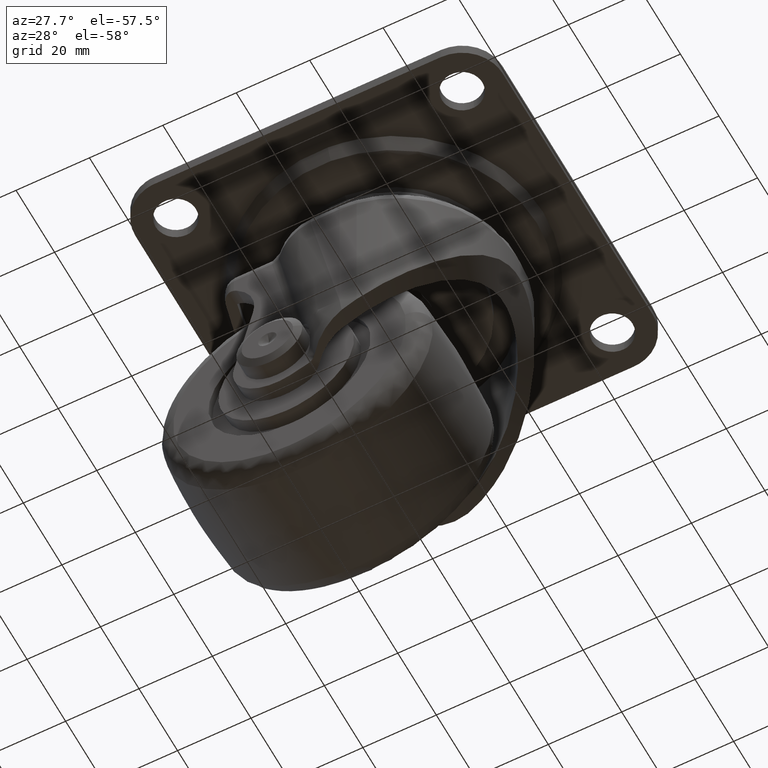
[diagram: clean part render]
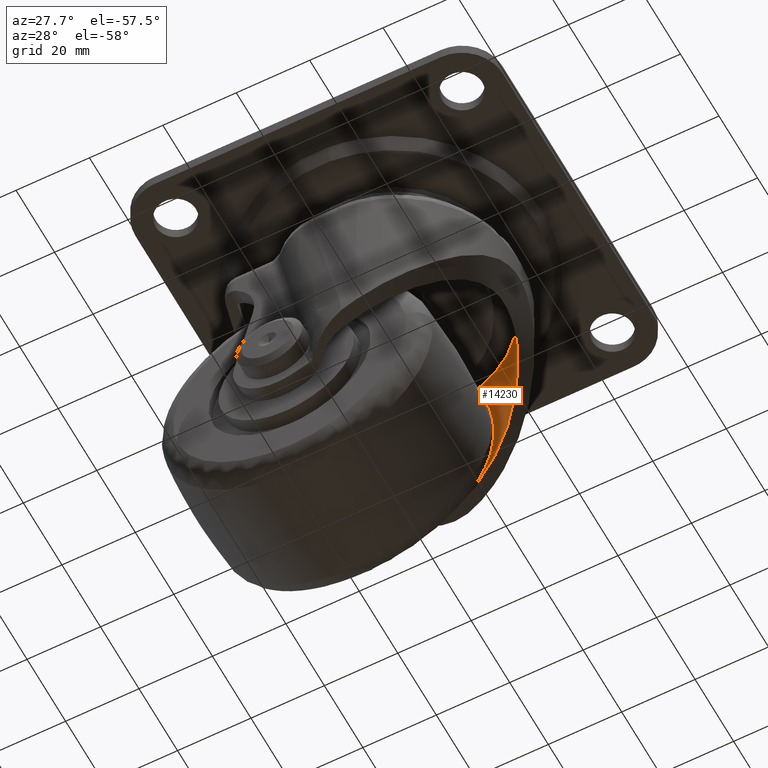
[diagram: same view with one face highlighted and labeled with its STEP entity id]
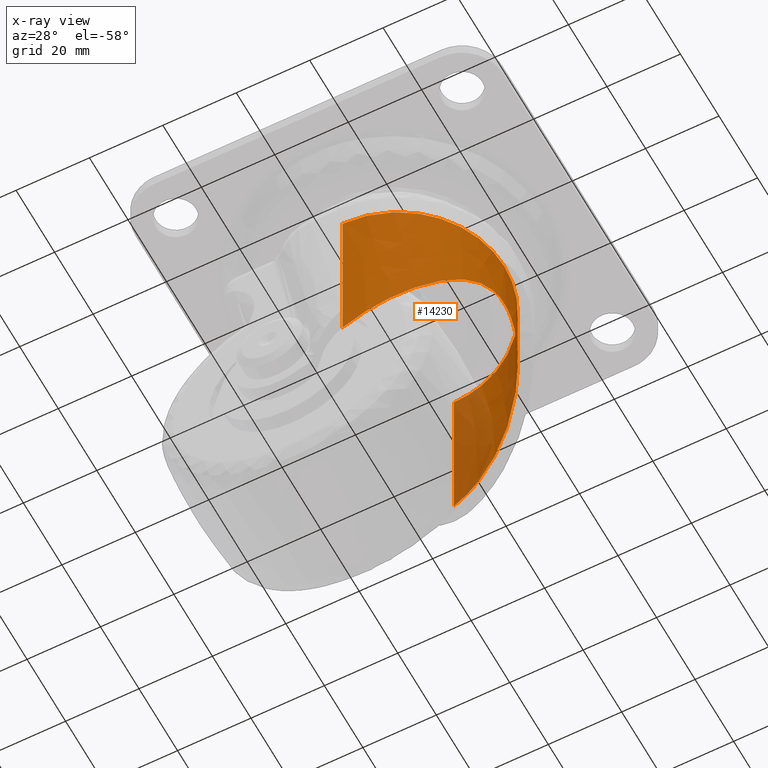
[diagram: x-ray of the same camera — body ghosted, the highlighted face saturated]
A machine part, auxiliary view. The second image highlights one B-rep face of the part: STEP entity #14230.
The next image is the same camera in x-ray: the body ghosted, the highlighted face saturated — about 19% of this face is hidden behind the body in this view.
In plain terms, the highlighted face is a freeform B-spline surface patch.
Its self-contained STEP definition (entity closure, byte-faithful):
#12983=CARTESIAN_POINT('',(-1.228536393799720,-28.873505000000101,-71.842425197581093));
#12984=VERTEX_POINT('',#12983);
#13012=CARTESIAN_POINT('',(-1.228536196900664,28.873505000000101,-71.842425130092494));
#13013=VERTEX_POINT('',#13012);
#13014=CARTESIAN_POINT('',(-1.228536393799720,-28.873505000000101,-71.842425197581093));
#13015=CARTESIAN_POINT('',(-0.131497210795412,-28.873505000000112,-71.466406434164085));
#13016=CARTESIAN_POINT('',(0.945706071810089,-28.821227118329901,-71.068789204203085));
#13017=CARTESIAN_POINT('',(3.063652154858954,-28.624332732421699,-70.232275505661960));
#13018=CARTESIAN_POINT('',(4.104384174162309,-28.479669942692109,-69.793374815646303));
#13019=CARTESIAN_POINT('',(6.151628072642251,-28.106103106054910,-68.875811165396016));
#13020=CARTESIAN_POINT('',(7.158133859560691,-27.877175159116000,-68.397144871044375));
#13021=CARTESIAN_POINT('',(9.138473611056593,-27.340222718838969,-67.401288299589368));
#13022=CARTESIAN_POINT('',(10.112304339378300,-27.032188775442481,-66.884094886019241));
#13023=CARTESIAN_POINT('',(11.309791805848249,-26.599378274342520,-66.214184417273813));
#13024=CARTESIAN_POINT('',(11.548297992220821,-26.510421948520680,-66.079031069233409));
#13025=CARTESIAN_POINT('',(12.023338385533689,-26.327739555596590,-65.806397363232932));
#13026=CARTESIAN_POINT('',(12.259742774764581,-26.234056258397100,-65.668987047015435));
#13027=CARTESIAN_POINT('',(12.962893119805820,-25.947198945571142,-65.255161666462769));
#13028=CARTESIAN_POINT('',(13.424618190263940,-25.747828776966060,-64.976559372927653));
#13029=CARTESIAN_POINT('',(14.789571497944920,-25.126211550727220,-64.133080500488575));
#13030=CARTESIAN_POINT('',(15.672621591980111,-24.680534632516281,-63.560525745101401));
#13031=CARTESIAN_POINT('',(17.388518496472489,-23.729420288579249,-62.397599013269037));
#13032=CARTESIAN_POINT('',(18.221358478865039,-23.223982487612460,-61.807217816547102));
#13033=CARTESIAN_POINT('',(19.839125071025862,-22.153641098382838,-60.611582324495252));
#13034=CARTESIAN_POINT('',(20.624051608673490,-21.588752807914339,-60.006314516318618));
#13035=CARTESIAN_POINT('',(22.147067511270240,-20.397144877225958,-58.784484851954517));
#13036=CARTESIAN_POINT('',(22.885165064569840,-19.770464014604791,-58.167900450075571));
#13037=CARTESIAN_POINT('',(23.778357502904051,-18.944845311351600,-57.393069026892952));
#13038=CARTESIAN_POINT('',(23.955505468597419,-18.777603817322451,-57.237911594619547));
#13039=CARTESIAN_POINT('',(24.305608137073168,-18.439950679341049,-56.928382284855957));
#13040=CARTESIAN_POINT('',(24.478720076205541,-18.269395629752459,-56.773874781007500));
#13041=CARTESIAN_POINT('',(24.992254580703630,-17.752428987006670,-56.311291682854559));
#13042=CARTESIAN_POINT('',(25.326881116587220,-17.400724585830321,-56.004149637775008));
#13043=CARTESIAN_POINT('',(26.307524846361201,-16.323214144373850,-55.087996427660201));
#13044=CARTESIAN_POINT('',(26.930416446006621,-15.575208543887570,-54.484114526940793));
#13045=CARTESIAN_POINT('',(27.816543563213301,-14.400880730902101,-53.596826178164392));
#13046=CARTESIAN_POINT('',(28.103859169763219,-14.000674133159000,-53.304184057160313));
#13047=CARTESIAN_POINT('',(28.661669641215401,-13.180730136378120,-52.727023716595383));
#13048=CARTESIAN_POINT('',(28.932168213297938,-12.760999975788909,-52.442499897298923));
#13049=CARTESIAN_POINT('',(29.324508911637771,-12.114755527445960,-52.023594159788743));
#13050=CARTESIAN_POINT('',(29.453051470516868,-11.896559909780761,-51.885276725174002));
#13051=CARTESIAN_POINT('',(29.705483648794790,-11.454187268538060,-51.611640570848991));
#13052=CARTESIAN_POINT('',(29.829460659084681,-11.229828215355910,-51.476223240763566));
#13053=CARTESIAN_POINT('',(30.192211141628231,-10.550677630127209,-51.077175028133396));
#13054=CARTESIAN_POINT('',(30.422423003806362,-10.088827174804560,-50.820078157280228));
#13055=CARTESIAN_POINT('',(30.857977767958779,-9.144516580729503,-50.327471948305181));
#13056=CARTESIAN_POINT('',(31.063327885174921,-8.662063848264511,-50.091953344578840));
#13057=CARTESIAN_POINT('',(31.446835803975372,-7.673369080114140,-49.647159644580093));
#13058=CARTESIAN_POINT('',(31.625004959985031,-7.167138230271990,-49.437870954677003));
#13059=CARTESIAN_POINT('',(31.828657485842569,-6.516857030326267,-49.196377146111587));
#13060=CARTESIAN_POINT('',(31.868432121437220,-6.385923148402500,-49.149088010500293));
#13061=CARTESIAN_POINT('',(31.946005024126279,-6.122221156310068,-49.056638508792169));
#13062=CARTESIAN_POINT('',(31.983842132893209,-5.989305086908540,-49.011431482609638));
#13063=CARTESIAN_POINT('',(32.093808854534842,-5.589442641461271,-48.879747767535520));
#13064=CARTESIAN_POINT('',(32.162508005536552,-5.321037553063849,-48.797074027803482));
#13065=CARTESIAN_POINT('',(32.354328155880857,-4.510060711805112,-48.565356173236992));
#13066=CARTESIAN_POINT('',(32.463195422913742,-3.961734362487131,-48.432600833066523));
#13067=CARTESIAN_POINT('',(32.640018974411007,-2.848120436401823,-48.216005289921981));
#13068=CARTESIAN_POINT('',(32.707979613209922,-2.282833155648342,-48.132167226898730));
#13069=CARTESIAN_POINT('',(32.765058465129563,-1.564475033198128,-48.061637175338447));
#13070=CARTESIAN_POINT('',(32.775078474983360,-1.420215391169314,-48.049245519722291));
#13071=CARTESIAN_POINT('',(32.792260282000747,-1.130489067867614,-48.027986985908797));
#13072=CARTESIAN_POINT('',(32.799398804848657,-0.985328152340162,-48.019148922010316));
#13073=CARTESIAN_POINT('',(32.816364351895352,-0.551185131138352,-47.998138467553211));
#13074=CARTESIAN_POINT('',(32.821796675908750,-0.262659212323400,-47.991403437594400));
#13075=CARTESIAN_POINT('',(32.820126882833300,1.175536690106346,-47.993472815230767));
#13076=CARTESIAN_POINT('',(32.726737365851712,2.311894521417664,-48.109826950163928));
#13077=CARTESIAN_POINT('',(32.524286503883843,3.575598077658633,-48.357762520441639));
#13078=CARTESIAN_POINT('',(32.500413279393108,3.715930541563056,-48.386959382620930));
#13079=CARTESIAN_POINT('',(32.450069297385397,3.995645025567995,-48.448424889261588));
#13080=CARTESIAN_POINT('',(32.370894764356592,4.412509279283934,-48.544940453824950));
#13081=CARTESIAN_POINT('',(32.281122901084757,4.821583772629313,-48.653817105101332));
#13082=CARTESIAN_POINT('',(32.088321891836188,5.630137105113183,-48.886624769729458));
#13083=CARTESIAN_POINT('',(31.942146509863591,6.156404212487296,-49.061861454122123));
#13084=CARTESIAN_POINT('',(31.618180223088700,7.186907335877439,-49.445899751548772));
#13085=CARTESIAN_POINT('',(31.440379436558260,7.691136794099523,-49.654710955918709));
#13086=CARTESIAN_POINT('',(31.151944664755650,8.433014434275725,-49.989141969158453));
#13087=CARTESIAN_POINT('',(31.052170530797341,8.677890654764058,-50.104163132158817));
#13088=CARTESIAN_POINT('',(30.845621588499370,9.163098299937541,-50.340723423073463));
#13089=CARTESIAN_POINT('',(30.738681640686451,9.403762240866840,-50.462447124072177));
#13090=CARTESIAN_POINT('',(30.409934018846680,10.114599235911550,-50.834088618154126));
#13091=CARTESIAN_POINT('',(30.179707372984449,10.574989301669691,-51.091042333363852));
#13092=CARTESIAN_POINT('',(29.699189528047992,11.472781289638039,-51.619412020999476));
#13093=CARTESIAN_POINT('',(29.448890411040129,11.910170575083880,-51.890838952651073));
#13094=CARTESIAN_POINT('',(28.929620645938890,12.764900977581361,-52.445171070273680));
#13095=CARTESIAN_POINT('',(28.660645122975449,13.182234079399651,-52.728083349906569));
#13096=CARTESIAN_POINT('',(28.104960584735291,13.999057156815670,-53.303044859590067));
#13097=CARTESIAN_POINT('',(27.818248487243949,14.398541868249810,-53.595098864062152));
#13098=CARTESIAN_POINT('',(27.227688992695029,15.181331129589170,-54.186472450622858));
#13099=CARTESIAN_POINT('',(26.923839629532441,15.564632136255151,-54.485795351231033));
#13100=CARTESIAN_POINT('',(26.455462933052932,16.128385625585011,-54.939088986121909));
#13101=CARTESIAN_POINT('',(26.297235015824199,16.314434200697931,-55.090907530140747));
#13102=CARTESIAN_POINT('',(25.976595206699120,16.682918145838599,-55.395821398817709));
#13103=CARTESIAN_POINT('',(25.814022834425391,16.865526632741489,-55.549065616127287));
#13104=CARTESIAN_POINT('',(24.993258058482539,17.767046756949082,-56.315744901373037));
#13105=CARTESIAN_POINT('',(24.311106887876111,18.452169744299901,-56.930818709961862));
#13106=CARTESIAN_POINT('',(22.897263931699211,19.759509919286049,-58.157502231598983));
#13107=CARTESIAN_POINT('',(22.165553124507419,20.381661383909329,-58.769150510756027));
#13108=CARTESIAN_POINT('',(20.652275708321088,21.567659608644000,-59.984160962875087));
#13109=CARTESIAN_POINT('',(19.870703578490129,22.131476721978260,-60.587544475013452));
#13110=CARTESIAN_POINT('',(18.255952761087119,23.202314801165119,-61.782321564445851));
#13111=CARTESIAN_POINT('',(17.422777295402021,23.709326354813641,-62.373728326712893));
#13112=CARTESIAN_POINT('',(16.131935145210189,24.426461398688829,-63.249540434670443));
#13113=CARTESIAN_POINT('',(15.694796534709850,24.658256766571760,-63.539598595875262));
#13114=CARTESIAN_POINT('',(15.028392240802880,24.994802316531711,-63.971601340488327));
#13115=CARTESIAN_POINT('',(14.804379779668050,25.105170115324700,-64.115147844897095));
#13116=CARTESIAN_POINT('',(14.353110848428910,25.321933752444739,-64.400915525015563));
#13117=CARTESIAN_POINT('',(14.126327370403979,25.428104660358930,-64.542838525888740));
#13118=CARTESIAN_POINT('',(12.986627589089791,25.947891351292320,-65.247584820055820));
#13119=CARTESIAN_POINT('',(12.056391282739240,26.328396458287830,-65.795801613114591));
#13120=CARTESIAN_POINT('',(10.157582293023740,27.016917515742900,-66.859450647451396));
#13121=CARTESIAN_POINT('',(9.189013743015352,27.324939182647629,-67.374887617705085));
#13122=CARTESIAN_POINT('',(7.211409696669253,27.864229059391310,-68.371289051814799));
#13123=CARTESIAN_POINT('',(6.202382303607891,28.095516781594469,-68.852258061743754));
#13124=CARTESIAN_POINT('',(4.656196918092024,28.379600362493740,-69.546432984908407));
#13125=CARTESIAN_POINT('',(4.135353084722210,28.463796722236818,-69.773276137426208));
#13126=CARTESIAN_POINT('',(3.345541728254552,28.573435018939609,-70.106515901874602));
#13127=CARTESIAN_POINT('',(3.080631991578023,28.607227259967789,-70.216511888235630));
#13128=CARTESIAN_POINT('',(2.548965729232448,28.668958380865089,-70.433688975912503));
#13129=CARTESIAN_POINT('',(2.282395985382666,28.696881015247840,-70.540797025696975));
#13130=CARTESIAN_POINT('',(0.945842990624431,28.821530746666280,-71.068918638402039));
#13131=CARTESIAN_POINT('',(-0.135239850369055,28.873504993741371,-71.467689249770402));
#13132=CARTESIAN_POINT('',(-1.228536196900726,28.873505000000101,-71.842425130092394));
#13133=B_SPLINE_CURVE_WITH_KNOTS('',3,(#13014,#13015,#13016,#13017,#13018,#13019,#13020,#13021,#13022,#13023,#13024,#13025,#13026,#13027,#13028,#13029,#13030,#13031,#13032,#13033,#13034,#13035,#13036,#13037,#13038,#13039,#13040,#13041,#13042,#13043,#13044,#13045,#13046,#13047,#13048,#13049,#13050,#13051,#13052,#13053,#13054,#13055,#13056,#13057,#13058,#13059,#13060,#13061,#13062,#13063,#13064,#13065,#13066,#13067,#13068,#13069,#13070,#13071,#13072,#13073,#13074,#13075,#13076,#13077,#13078,#13079,#13080,#13081,#13082,#13083,#13084,#13085,#13086,#13087,#13088,#13089,#13090,#13091,#13092,#13093,#13094,#13095,#13096,#13097,#13098,#13099,#13100,#13101,#13102,#13103,#13104,#13105,#13106,#13107,#13108,#13109,#13110,#13111,#13112,#13113,#13114,#13115,#13116,#13117,#13118,#13119,#13120,#13121,#13122,#13123,#13124,#13125,#13126,#13127,#13128,#13129,#13130,#13131,#13132),.UNSPECIFIED.,.F.,.U.,(4,2,2,2,2,2,2,2,2,2,2,2,2,2,2,2,2,2,2,2,2,2,2,2,2,2,2,2,2,2,2,2,2,1,2,2,2,2,2,2,2,2,2,2,2,2,2,2,2,2,2,2,2,2,2,2,2,2,2,4),(0.0,0.031250000000000,0.062500000000000,0.093750000000000,0.125000000000000,0.132812500000000,0.140625000000000,0.156250000000000,0.187500000000000,0.218750000000000,0.250000000000000,0.281249999999999,0.289062499999999,0.296874999999999,0.312499999999999,0.343749999999999,0.359374999999999,0.374999999999999,0.382812499999999,0.390624999999999,0.406249999999999,0.421874999999999,0.437499999999999,0.441406249999999,0.445312499999999,0.453124999999999,0.468749999999999,0.484374999999999,0.488281249999999,0.492187499999999,0.499999999999999,0.531250000000000,0.535156250000000,0.539062500000000,0.546875000000000,0.562500000000000,0.578125000000000,0.585937500000000,0.593750000000000,0.609375000000000,0.625000000000000,0.640625000000000,0.656250000000000,0.671875000000000,0.679687500000000,0.687500000000000,0.718750000000000,0.750000000000001,0.781250000000001,0.812500000000001,0.828125000000001,0.835937500000001,0.843750000000001,0.875000000000001,0.906250000000001,0.937500000000001,0.953125000000001,0.960937500000001,0.968750000000000,1.0),.UNSPECIFIED.);
#13134=EDGE_CURVE('',#12984,#13013,#13133,.T.);
#13569=CARTESIAN_POINT('',(7.666126679422930,28.873505000000101,-26.083351508999900));
#13570=VERTEX_POINT('',#13569);
#13640=CARTESIAN_POINT('',(7.666126502333420,-28.873505000000101,-26.083351474577199));
#13641=VERTEX_POINT('',#13640);
#13675=CARTESIAN_POINT('',(7.666126502333420,-28.873505000000101,-26.083351474577199));
#13676=CARTESIAN_POINT('',(36.009143803200800,-28.873505000000097,-31.592675939415482));
#13677=CARTESIAN_POINT('',(36.009143891745573,-0.000000090202034,-31.592675956626859));
#13678=CARTESIAN_POINT('',(36.009143980290332,28.873504819596057,-31.592675973838205));
#13679=CARTESIAN_POINT('',(7.666126679422927,28.873505000000101,-26.083351508999911));
#13687=(BOUNDED_CURVE()B_SPLINE_CURVE(2,(#13675,#13676,#13677,#13678,#13679),.UNSPECIFIED.,.F.,.U.)B_SPLINE_CURVE_WITH_KNOTS((3,2,3),(0.0,0.500000000000000,1.0),.UNSPECIFIED.)CURVE()GEOMETRIC_REPRESENTATION_ITEM()RATIONAL_B_SPLINE_CURVE((1.0,0.707106782291063,1.0,0.707106782291063,1.0))REPRESENTATION_ITEM(''));
#13688=EDGE_CURVE('',#13641,#13570,#13687,.T.);
#14198=CARTESIAN_POINT('',(7.146559373644916,-28.863610770968471,-24.795157329324180));
#14199=CARTESIAN_POINT('',(-2.198395831604939,-28.863610770968471,-72.870784159555143));
#14200=CARTESIAN_POINT('',(36.743915847752881,-29.653150902247507,-30.548300630420531));
#14201=CARTESIAN_POINT('',(27.398960642503027,-29.653150902247507,-78.623927460651473));
#14202=CARTESIAN_POINT('',(36.227193685318007,0.503912144528854,-30.447860016748130));
#14203=CARTESIAN_POINT('',(26.882238480068160,0.503912144528854,-78.523486846979083));
#14204=CARTESIAN_POINT('',(35.710471522883154,30.660975191305202,-30.347419403075758));
#14205=CARTESIAN_POINT('',(26.365516317633297,30.660975191305212,-78.423046233306692));
#14206=CARTESIAN_POINT('',(6.158193257102204,28.819650092907850,-24.603038418049390));
#14207=CARTESIAN_POINT('',(-3.186761948147650,28.819650092907850,-72.678665248280311));
#14215=(BOUNDED_SURFACE()B_SPLINE_SURFACE(1,2,((#14198,#14200,#14202,#14204,#14206),(#14199,#14201,#14203,#14205,#14207)),.UNSPECIFIED.,.F.,.F.,.U.)B_SPLINE_SURFACE_WITH_KNOTS((2,2),(3,2,3),(0.0,48.975443672393112),(0.0,49.321947351346843,98.643894702693672),.UNSPECIFIED.)GEOMETRIC_REPRESENTATION_ITEM()RATIONAL_B_SPLINE_SURFACE(((1.0,0.691513055782269,1.0,0.691513055782269,1.0),(1.0,0.691513055782269,1.0,0.691513055782269,1.0)))REPRESENTATION_ITEM('')SURFACE());
#14216=ORIENTED_EDGE('',*,*,#13134,.F.);
#14217=CARTESIAN_POINT('',(7.666126502333420,-28.873505000000101,-26.083351474577199));
#14218=CARTESIAN_POINT('',(-1.228536393799720,-28.873505000000101,-71.842425197581093));
#14219=QUASI_UNIFORM_CURVE('',1,(#14217,#14218),.UNSPECIFIED.,.F.,.U.);
#14220=EDGE_CURVE('',#13641,#12984,#14219,.T.);
#14221=ORIENTED_EDGE('',*,*,#14220,.F.);
#14222=ORIENTED_EDGE('',*,*,#13688,.T.);
#14223=CARTESIAN_POINT('',(7.666126679422930,28.873505000000101,-26.083351508999900));
#14224=CARTESIAN_POINT('',(-1.228536196900664,28.873505000000101,-71.842425130092494));
#14225=QUASI_UNIFORM_CURVE('',1,(#14223,#14224),.UNSPECIFIED.,.F.,.U.);
#14226=EDGE_CURVE('',#13570,#13013,#14225,.T.);
#14227=ORIENTED_EDGE('',*,*,#14226,.T.);
#14228=EDGE_LOOP('',(#14216,#14221,#14222,#14227));
#14229=FACE_OUTER_BOUND('',#14228,.T.);
#14230=ADVANCED_FACE('',(#14229),#14215,.F.);